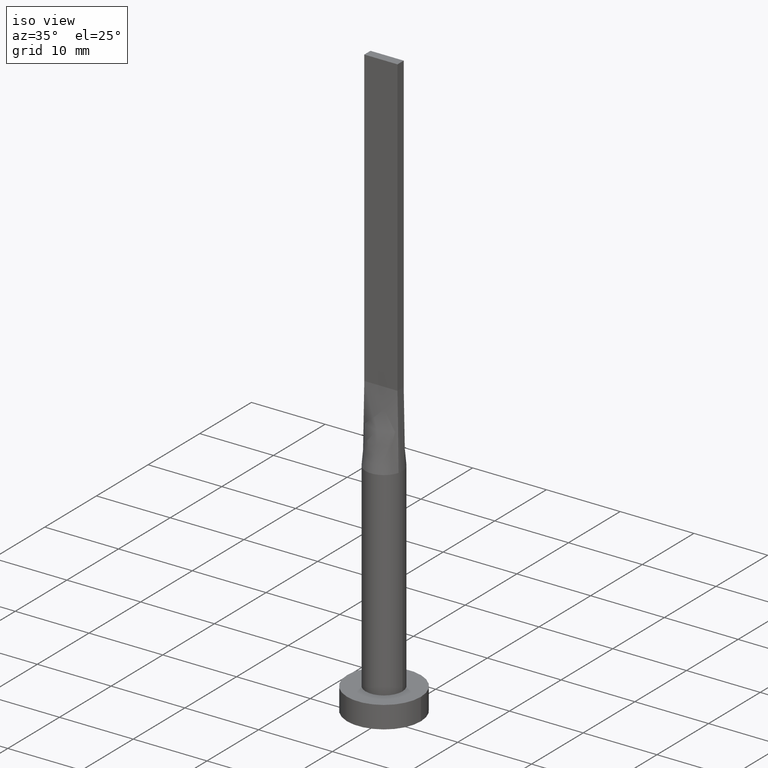
[diagram: clean part render]
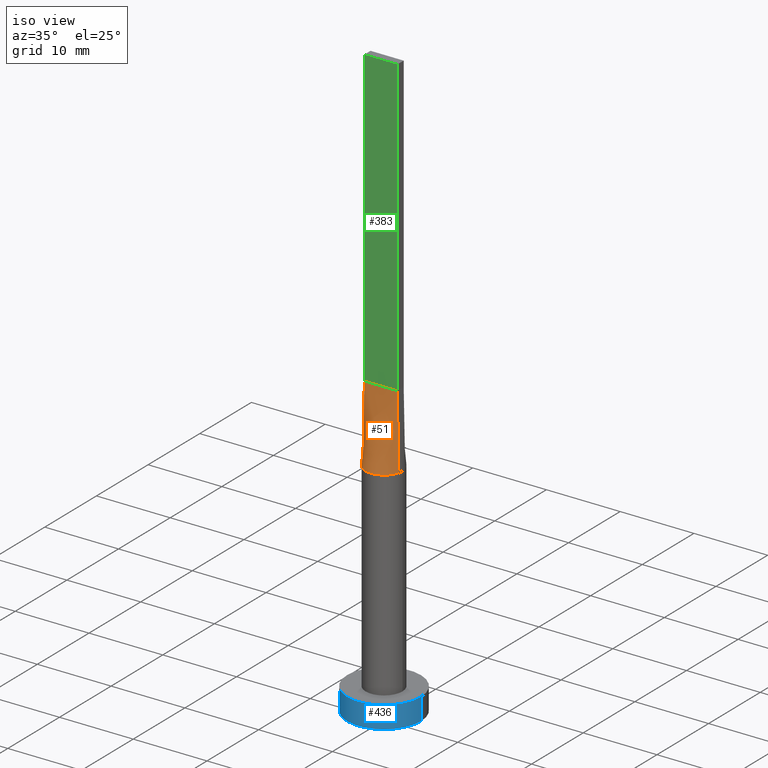
[diagram: same view with three faces highlighted in distinct colors, each labeled with its STEP entity id]
A machine part, iso view with three faces highlighted in distinct colors.
Their STEP definitions:

[orange] entity #51 — the highlighted face is a freeform B-spline surface patch.
#9 = CARTESIAN_POINT ( 'NONE',  ( 2.250000000000000000, -0.5999999999999997558, 40.00000000000000000 ) ) ;
#12 = CARTESIAN_POINT ( 'NONE',  ( -2.250000000000000000, -0.5999999999999994227, 40.00000000000000000 ) ) ;
#14 = CARTESIAN_POINT ( 'NONE',  ( 0.6394215159088044720, -2.436483607037786214, 30.00000000000000711 ) ) ;
#39 = EDGE_CURVE ( 'NONE', #128, #298, #567, .T. ) ;
#44 = CARTESIAN_POINT ( 'NONE',  ( -0.1875000000000003886, -0.5999999999999995337, 40.00000000000000000 ) ) ;
#46 = CARTESIAN_POINT ( 'NONE',  ( -0.3750000000000003886, -0.5999999999999994227, 39.99999999999999289 ) ) ;
#51 = ADVANCED_FACE ( 'NONE', ( #302 ), #405, .T. ) ;
#54 = CARTESIAN_POINT ( 'NONE',  ( 2.062500000000000000, -0.5999999999999997558, 39.99999999999999289 ) ) ;
#59 = VERTEX_POINT ( 'NONE', #355 ) ;
#76 = CARTESIAN_POINT ( 'NONE',  ( -2.250000000000000000, -0.5999999999999994227, 40.00000000000000000 ) ) ;
#77 = EDGE_CURVE ( 'NONE', #59, #298, #451, .T. ) ;
#83 = CARTESIAN_POINT ( 'NONE',  ( -2.283437435282020811, -1.045786430836910474, 30.00000000000000000 ) ) ;
#91 = CARTESIAN_POINT ( 'NONE',  ( 0.9374999999999997780, -0.5999999999999996447, 39.99999999999999289 ) ) ;
#96 = CARTESIAN_POINT ( 'NONE',  ( 1.312499999999999778, -0.5999999999999997558, 39.99999999999999289 ) ) ;
#101 = AXIS2_PLACEMENT_3D ( 'NONE', #288, #461, #427 ) ;
#105 = CARTESIAN_POINT ( 'NONE',  ( 2.250000000000000000, -0.5999999999999997558, 40.00000000000000000 ) ) ;
#128 = VERTEX_POINT ( 'NONE', #538 ) ;
#152 = ORIENTED_EDGE ( 'NONE', *, *, #39, .T. ) ;
#163 = VERTEX_POINT ( 'NONE', #195 ) ;
#168 = CARTESIAN_POINT ( 'NONE',  ( -2.415587349003116113, -0.6441566264008301568, 30.00000000000000000 ) ) ;
#176 = CARTESIAN_POINT ( 'NONE',  ( -2.363720129086103405, -0.8386587010896268124, 30.00000000000000355 ) ) ;
#183 = CARTESIAN_POINT ( 'NONE',  ( 0.1874999999999995837, -0.5999999999999996447, 39.99999999999999289 ) ) ;
#189 = CARTESIAN_POINT ( 'NONE',  ( -0.9375000000000004441, -0.5999999999999994227, 39.99999999999999289 ) ) ;
#195 = CARTESIAN_POINT ( 'NONE',  ( -2.415759998437587708, -0.6442033382925431706, 30.00000000000000000 ) ) ;
#212 = LINE ( 'NONE', #477, #320 ) ;
#224 = CARTESIAN_POINT ( 'NONE',  ( 1.500000000000000000, -0.5999999999999997558, 39.99999999999999289 ) ) ;
#230 = CARTESIAN_POINT ( 'NONE',  ( 2.283437435282019479, -1.045786430836911363, 30.00000000000001066 ) ) ;
#234 = CARTESIAN_POINT ( 'NONE',  ( 2.363720129086102961, -0.8386587010896274785, 30.00000000000000355 ) ) ;
#269 = CARTESIAN_POINT ( 'NONE',  ( 1.875000000000000000, -0.5999999999999997558, 39.99999999999999289 ) ) ;
#273 = CARTESIAN_POINT ( 'NONE',  ( -0.7500000000000004441, -0.5999999999999994227, 39.99999999999999289 ) ) ;
#277 = CARTESIAN_POINT ( 'NONE',  ( -1.466504377161501171, -2.043814966248090226, 30.00000000000000000 ) ) ;
#288 = CARTESIAN_POINT ( 'NONE',  ( 0.000000000000000000, 0.000000000000000000, 30.00000000000000000 ) ) ;
#298 = VERTEX_POINT ( 'NONE', #105 ) ;
#302 = FACE_OUTER_BOUND ( 'NONE', #428, .T. ) ;
#308 = CARTESIAN_POINT ( 'NONE',  ( -1.312500000000000222, -0.5999999999999994227, 39.99999999999999289 ) ) ;
#320 = VECTOR ( 'NONE', #566, 1000.000000000000114 ) ;
#321 = CARTESIAN_POINT ( 'NONE',  ( 2.042400361660746899, -1.461628045180436652, 30.00000000000000355 ) ) ;
#328 = EDGE_CURVE ( 'NONE', #163, #128, #454, .T. ) ;
#344 = CARTESIAN_POINT ( 'NONE',  ( -1.500000000000000000, -0.5999999999999994227, 39.99999999999999289 ) ) ;
#350 = ORIENTED_EDGE ( 'NONE', *, *, #328, .T. ) ;
#352 = CARTESIAN_POINT ( 'NONE',  ( 1.466504377161500727, -2.043814966248090226, 29.99999999999999645 ) ) ;
#353 = VECTOR ( 'NONE', #542, 1000.000000000000000 ) ;
#355 = CARTESIAN_POINT ( 'NONE',  ( -2.250000000000000000, -0.5999999999999994227, 40.00000000000000000 ) ) ;
#357 = CARTESIAN_POINT ( 'NONE',  ( 1.212939335911089378, -2.207734225347456558, 29.99999999999999645 ) ) ;
#358 = ORIENTED_EDGE ( 'NONE', *, *, #425, .T. ) ;
#363 = CARTESIAN_POINT ( 'NONE',  ( 1.880930080310023511, -1.670304384679167864, 30.00000000000000000 ) ) ;
#366 = CARTESIAN_POINT ( 'NONE',  ( -0.3201159637850009565, -2.499999999999999112, 29.99999999999999645 ) ) ;
#381 = VECTOR ( 'NONE', #475, 1000.000000000000114 ) ;
#390 = CARTESIAN_POINT ( 'NONE',  ( -1.874999999999999778, -0.5999999999999994227, 39.99999999999999289 ) ) ;
#399 = CARTESIAN_POINT ( 'NONE',  ( 2.415587349003115669, -0.6441566264008303788, 30.00000000000000000 ) ) ;
#402 = CARTESIAN_POINT ( 'NONE',  ( -0.6394215159088060263, -2.436483607037785326, 29.99999999999999289 ) ) ;
#405 = B_SPLINE_SURFACE_WITH_KNOTS ( 'NONE', 3, 1, ( 
 ( #168, #76 ),
 ( #176, #478 ),
 ( #83, #390 ),
 ( #571, #344 ),
 ( #546, #308 ),
 ( #277, #189 ),
 ( #444, #273 ),
 ( #402, #46 ),
 ( #366, #44 ),
 ( #484, #183 ),
 ( #14, #455 ),
 ( #357, #412 ),
 ( #352, #91 ),
 ( #363, #96 ),
 ( #321, #224 ),
 ( #230, #269 ),
 ( #234, #54 ),
 ( #399, #9 ) ),
 .UNSPECIFIED., .F., .F., .F.,
 ( 4, 2, 2, 2, 2, 2, 2, 2, 4 ),
 ( 2, 2 ),
 ( 0.000000000000000000, 0.1250000000000000000, 0.2500000000000000000, 0.3750000000000000000, 0.4999999999999999445, 0.6250000000000000000, 0.7500000000000000000, 0.8750000000000000000, 1.000000000000000000 ),
 ( 0.000000000000000000, 1.000000000000000000 ),
 .UNSPECIFIED. ) ;
#412 = CARTESIAN_POINT ( 'NONE',  ( 0.7499999999999995559, -0.5999999999999996447, 39.99999999999999289 ) ) ;
#425 = EDGE_CURVE ( 'NONE', #59, #163, #212, .T. ) ;
#427 = DIRECTION ( 'NONE',  ( 1.000000000000000000, 0.000000000000000000, 0.000000000000000000 ) ) ;
#428 = EDGE_LOOP ( 'NONE', ( #350, #152, #438, #358 ) ) ;
#438 = ORIENTED_EDGE ( 'NONE', *, *, #77, .F. ) ;
#444 = CARTESIAN_POINT ( 'NONE',  ( -1.212939335911091154, -2.207734225347456558, 30.00000000000000711 ) ) ;
#451 = LINE ( 'NONE', #12, #353 ) ;
#454 = CIRCLE ( 'NONE', #101, 2.500000000000000000 ) ;
#455 = CARTESIAN_POINT ( 'NONE',  ( 0.3749999999999995559, -0.5999999999999996447, 39.99999999999999289 ) ) ;
#461 = DIRECTION ( 'NONE',  ( 0.000000000000000000, 0.000000000000000000, 1.000000000000000000 ) ) ;
#475 = DIRECTION ( 'NONE',  ( -0.01655630387018617797, 0.004415014365382958356, 0.9998531874481929593 ) ) ;
#477 = CARTESIAN_POINT ( 'NONE',  ( -2.332793674501557835, -0.6220783132004148452, 35.00000000000000000 ) ) ;
#478 = CARTESIAN_POINT ( 'NONE',  ( -2.062499999999999556, -0.5999999999999994227, 39.99999999999999289 ) ) ;
#484 = CARTESIAN_POINT ( 'NONE',  ( 0.3201159637850000128, -2.500000000000000888, 30.00000000000001421 ) ) ;
#538 = CARTESIAN_POINT ( 'NONE',  ( 2.415783834663384866, -0.6442097370852554183, 30.00000000000000000 ) ) ;
#542 = DIRECTION ( 'NONE',  ( 1.000000000000000000, -7.228014483236697048E-17, 0.000000000000000000 ) ) ;
#546 = CARTESIAN_POINT ( 'NONE',  ( -1.880930080310024621, -1.670304384679167420, 30.00000000000000000 ) ) ;
#566 = DIRECTION ( 'NONE',  ( -0.01655630387018622654, -0.004415014365382967897, -0.9998531874481929593 ) ) ;
#567 = LINE ( 'NONE', #578, #381 ) ;
#571 = CARTESIAN_POINT ( 'NONE',  ( -2.042400361660746899, -1.461628045180435986, 29.99999999999999645 ) ) ;
#578 = CARTESIAN_POINT ( 'NONE',  ( 2.332793674501557390, -0.6220783132004150673, 35.00000000000000000 ) ) ;

[blue] entity #436 — the highlighted cylindrical surface (partial cylindrical patch) has radius 5 mm, axis along (-0, -0, -1).
#16 = CARTESIAN_POINT ( 'NONE',  ( -5.000000000000000000, 0.000000000000000000, 3.000000000000000000 ) ) ;
#22 = ORIENTED_EDGE ( 'NONE', *, *, #57, .F. ) ;
#30 = CARTESIAN_POINT ( 'NONE',  ( 0.000000000000000000, 0.000000000000000000, 3.000000000000000000 ) ) ;
#32 = CARTESIAN_POINT ( 'NONE',  ( 5.000000000000000000, 6.123233995736766282E-16, 3.000000000000000000 ) ) ;
#47 = VECTOR ( 'NONE', #371, 1000.000000000000000 ) ;
#57 = EDGE_CURVE ( 'NONE', #419, #396, #140, .T. ) ;
#58 = DIRECTION ( 'NONE',  ( 0.000000000000000000, 0.000000000000000000, 1.000000000000000000 ) ) ;
#63 = CARTESIAN_POINT ( 'NONE',  ( 0.000000000000000000, 0.000000000000000000, 0.000000000000000000 ) ) ;
#70 = ORIENTED_EDGE ( 'NONE', *, *, #507, .F. ) ;
#72 = CARTESIAN_POINT ( 'NONE',  ( -5.000000000000000000, 0.000000000000000000, 0.000000000000000000 ) ) ;
#95 = DIRECTION ( 'NONE',  ( 0.000000000000000000, 0.000000000000000000, 1.000000000000000000 ) ) ;
#110 = ORIENTED_EDGE ( 'NONE', *, *, #162, .T. ) ;
#140 = LINE ( 'NONE', #408, #570 ) ;
#146 = VERTEX_POINT ( 'NONE', #247 ) ;
#162 = EDGE_CURVE ( 'NONE', #146, #237, #292, .T. ) ;
#172 = AXIS2_PLACEMENT_3D ( 'NONE', #30, #210, #305 ) ;
#184 = ORIENTED_EDGE ( 'NONE', *, *, #347, .T. ) ;
#207 = EDGE_LOOP ( 'NONE', ( #22, #70, #110, #184 ) ) ;
#210 = DIRECTION ( 'NONE',  ( -0.000000000000000000, -0.000000000000000000, -1.000000000000000000 ) ) ;
#221 = CIRCLE ( 'NONE', #485, 5.000000000000000000 ) ;
#223 = CARTESIAN_POINT ( 'NONE',  ( 0.000000000000000000, 0.000000000000000000, 3.000000000000000000 ) ) ;
#237 = VERTEX_POINT ( 'NONE', #72 ) ;
#239 = DIRECTION ( 'NONE',  ( 1.000000000000000000, 0.000000000000000000, 0.000000000000000000 ) ) ;
#247 = CARTESIAN_POINT ( 'NONE',  ( -5.000000000000000000, 0.000000000000000000, 3.000000000000000000 ) ) ;
#253 = CYLINDRICAL_SURFACE ( 'NONE', #172, 5.000000000000000000 ) ;
#292 = LINE ( 'NONE', #16, #47 ) ;
#305 = DIRECTION ( 'NONE',  ( -1.000000000000000000, 0.000000000000000000, 0.000000000000000000 ) ) ;
#345 = CIRCLE ( 'NONE', #468, 5.000000000000000000 ) ;
#347 = EDGE_CURVE ( 'NONE', #237, #396, #221, .T. ) ;
#365 = DIRECTION ( 'NONE',  ( 1.000000000000000000, 0.000000000000000000, 0.000000000000000000 ) ) ;
#371 = DIRECTION ( 'NONE',  ( -0.000000000000000000, -0.000000000000000000, -1.000000000000000000 ) ) ;
#396 = VERTEX_POINT ( 'NONE', #572 ) ;
#408 = CARTESIAN_POINT ( 'NONE',  ( 5.000000000000000000, 6.123233995736766282E-16, 3.000000000000000000 ) ) ;
#419 = VERTEX_POINT ( 'NONE', #32 ) ;
#436 = ADVANCED_FACE ( 'NONE', ( #516 ), #253, .T. ) ;
#468 = AXIS2_PLACEMENT_3D ( 'NONE', #223, #95, #365 ) ;
#485 = AXIS2_PLACEMENT_3D ( 'NONE', #63, #58, #239 ) ;
#491 = DIRECTION ( 'NONE',  ( -0.000000000000000000, -0.000000000000000000, -1.000000000000000000 ) ) ;
#507 = EDGE_CURVE ( 'NONE', #146, #419, #345, .T. ) ;
#516 = FACE_OUTER_BOUND ( 'NONE', #207, .T. ) ;
#570 = VECTOR ( 'NONE', #491, 1000.000000000000000 ) ;
#572 = CARTESIAN_POINT ( 'NONE',  ( 5.000000000000000000, 6.123233995736766282E-16, 0.000000000000000000 ) ) ;

[green] entity #383 — the highlighted planar face has unit normal (0, 1, -0).
#12 = CARTESIAN_POINT ( 'NONE',  ( -2.250000000000000000, -0.5999999999999994227, 40.00000000000000000 ) ) ;
#20 = VECTOR ( 'NONE', #149, 1000.000000000000000 ) ;
#37 = CARTESIAN_POINT ( 'NONE',  ( -2.250000000000000000, -0.5999999999999994227, 80.00000000000000000 ) ) ;
#42 = AXIS2_PLACEMENT_3D ( 'NONE', #37, #118, #78 ) ;
#59 = VERTEX_POINT ( 'NONE', #355 ) ;
#77 = EDGE_CURVE ( 'NONE', #59, #298, #451, .T. ) ;
#78 = DIRECTION ( 'NONE',  ( -1.000000000000000000, 7.228014483236697048E-17, 0.000000000000000000 ) ) ;
#79 = ORIENTED_EDGE ( 'NONE', *, *, #180, .T. ) ;
#105 = CARTESIAN_POINT ( 'NONE',  ( 2.250000000000000000, -0.5999999999999997558, 40.00000000000000000 ) ) ;
#115 = CARTESIAN_POINT ( 'NONE',  ( -2.250000000000000000, -0.5999999999999994227, 80.00000000000000000 ) ) ;
#118 = DIRECTION ( 'NONE',  ( 7.228014483236697048E-17, 1.000000000000000000, -0.000000000000000000 ) ) ;
#120 = EDGE_CURVE ( 'NONE', #160, #469, #415, .T. ) ;
#127 = PLANE ( 'NONE',  #42 ) ;
#134 = CARTESIAN_POINT ( 'NONE',  ( 2.250000000000000000, -0.5999999999999997558, 80.00000000000000000 ) ) ;
#149 = DIRECTION ( 'NONE',  ( -0.000000000000000000, -0.000000000000000000, -1.000000000000000000 ) ) ;
#160 = VERTEX_POINT ( 'NONE', #115 ) ;
#180 = EDGE_CURVE ( 'NONE', #160, #59, #426, .T. ) ;
#202 = CARTESIAN_POINT ( 'NONE',  ( -2.250000000000000000, -0.5999999999999994227, 80.00000000000000000 ) ) ;
#235 = ORIENTED_EDGE ( 'NONE', *, *, #307, .F. ) ;
#251 = DIRECTION ( 'NONE',  ( -0.000000000000000000, -0.000000000000000000, -1.000000000000000000 ) ) ;
#298 = VERTEX_POINT ( 'NONE', #105 ) ;
#307 = EDGE_CURVE ( 'NONE', #469, #298, #508, .T. ) ;
#310 = DIRECTION ( 'NONE',  ( 1.000000000000000000, -7.228014483236697048E-17, 0.000000000000000000 ) ) ;
#337 = ORIENTED_EDGE ( 'NONE', *, *, #120, .F. ) ;
#353 = VECTOR ( 'NONE', #542, 1000.000000000000000 ) ;
#355 = CARTESIAN_POINT ( 'NONE',  ( -2.250000000000000000, -0.5999999999999994227, 40.00000000000000000 ) ) ;
#383 = ADVANCED_FACE ( 'NONE', ( #561 ), #127, .F. ) ;
#393 = EDGE_LOOP ( 'NONE', ( #562, #235, #337, #79 ) ) ;
#415 = LINE ( 'NONE', #531, #544 ) ;
#426 = LINE ( 'NONE', #202, #20 ) ;
#451 = LINE ( 'NONE', #12, #353 ) ;
#469 = VERTEX_POINT ( 'NONE', #134 ) ;
#497 = VECTOR ( 'NONE', #251, 1000.000000000000000 ) ;
#508 = LINE ( 'NONE', #554, #497 ) ;
#531 = CARTESIAN_POINT ( 'NONE',  ( -2.250000000000000000, -0.5999999999999994227, 80.00000000000000000 ) ) ;
#542 = DIRECTION ( 'NONE',  ( 1.000000000000000000, -7.228014483236697048E-17, 0.000000000000000000 ) ) ;
#544 = VECTOR ( 'NONE', #310, 1000.000000000000000 ) ;
#554 = CARTESIAN_POINT ( 'NONE',  ( 2.250000000000000000, -0.5999999999999997558, 80.00000000000000000 ) ) ;
#561 = FACE_OUTER_BOUND ( 'NONE', #393, .T. ) ;
#562 = ORIENTED_EDGE ( 'NONE', *, *, #77, .T. ) ;